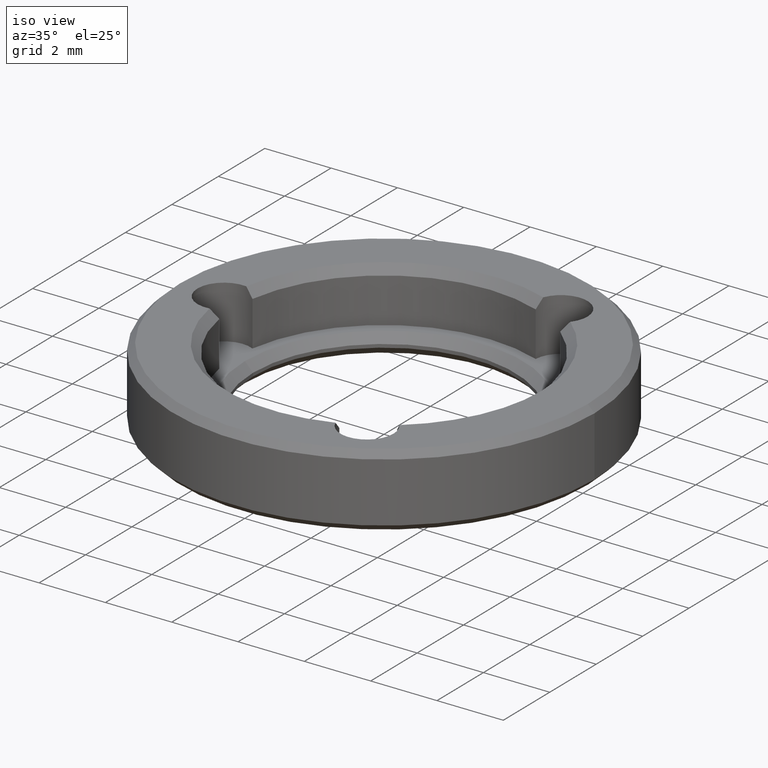
[diagram: clean part render]
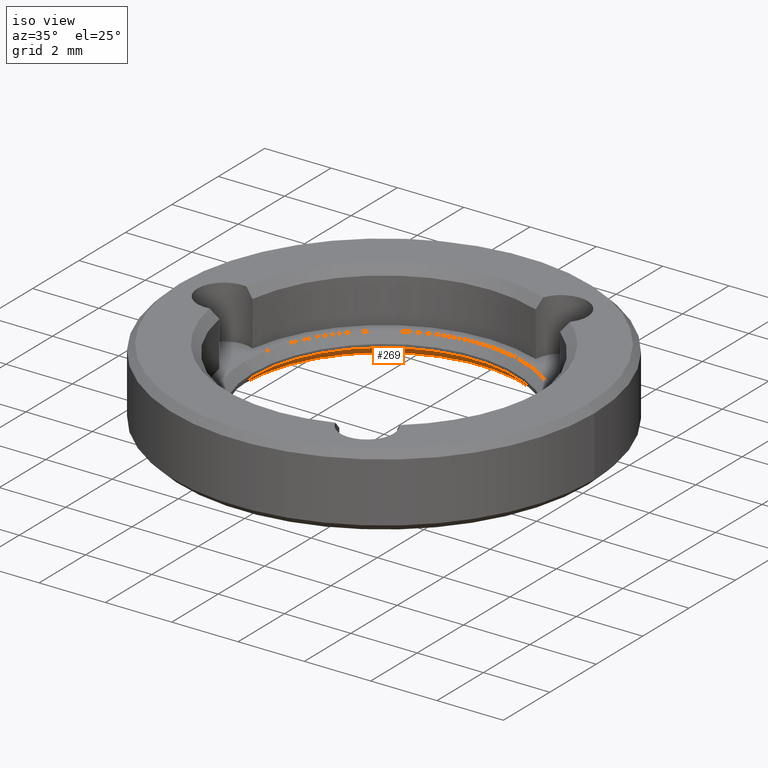
[diagram: same view with one face highlighted and labeled with its STEP entity id]
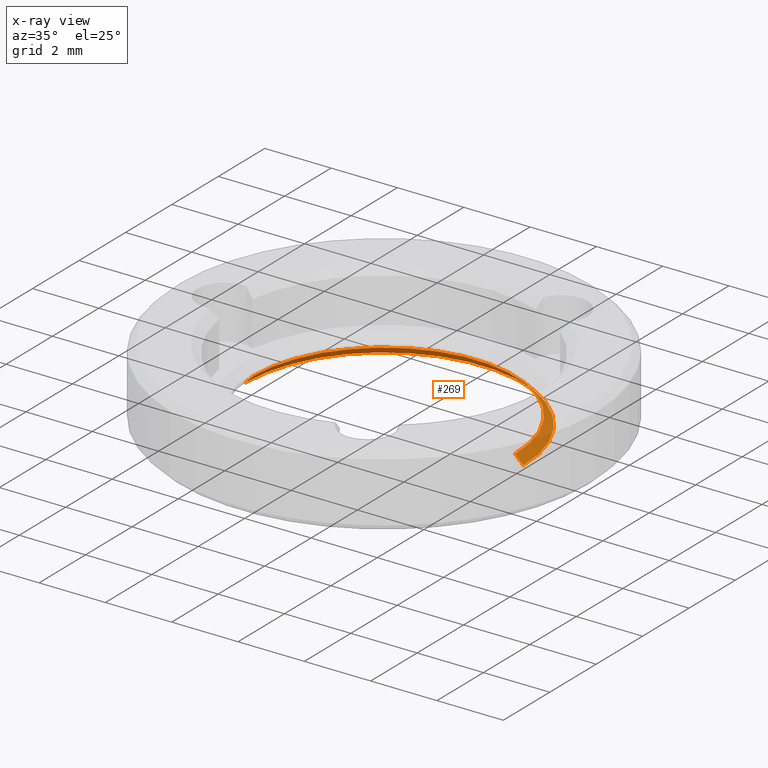
[diagram: x-ray of the same camera — body ghosted, the highlighted face saturated]
A machine part, iso view. The second image highlights one B-rep face of the part: STEP entity #269.
The next image is the same camera in x-ray: the body ghosted, the highlighted face saturated — about 43% of this face is hidden behind the body in this view.
In plain terms, the highlighted conical surface has half-angle 45 deg.
Its self-contained STEP definition (entity closure, byte-faithful):
#39 = VERTEX_POINT ( 'NONE', #126 ) ;
#46 = CIRCLE ( 'NONE', #185, 4.199999999999999289 ) ;
#54 = EDGE_CURVE ( 'NONE', #727, #39, #818, .T. ) ;
#63 = VECTOR ( 'NONE', #553, 1000.000000000000114 ) ;
#98 = LINE ( 'NONE', #593, #652 ) ;
#109 = EDGE_LOOP ( 'NONE', ( #161, #245, #524, #506 ) ) ;
#119 = AXIS2_PLACEMENT_3D ( 'NONE', #295, #501, #655 ) ;
#126 = CARTESIAN_POINT ( 'NONE',  ( 3.950000000000000178, 0.000000000000000000, 0.2499999999999985012 ) ) ;
#134 = DIRECTION ( 'NONE',  ( -0.000000000000000000, -0.000000000000000000, -1.000000000000000000 ) ) ;
#160 = FACE_OUTER_BOUND ( 'NONE', #109, .T. ) ;
#161 = ORIENTED_EDGE ( 'NONE', *, *, #834, .F. ) ;
#163 = DIRECTION ( 'NONE',  ( 0.000000000000000000, 0.000000000000000000, 1.000000000000000000 ) ) ;
#166 = CONICAL_SURFACE ( 'NONE', #119, 4.199999999999999289, 0.7853981633974482790 ) ;
#172 = DIRECTION ( 'NONE',  ( 0.7071067811865474617, 8.659560562354932858E-17, -0.7071067811865474617 ) ) ;
#185 = AXIS2_PLACEMENT_3D ( 'NONE', #647, #163, #362 ) ;
#245 = ORIENTED_EDGE ( 'NONE', *, *, #54, .F. ) ;
#269 = ADVANCED_FACE ( 'NONE', ( #160 ), #166, .F. ) ;
#295 = CARTESIAN_POINT ( 'NONE',  ( 0.000000000000000000, 0.000000000000000000, 0.000000000000000000 ) ) ;
#362 = DIRECTION ( 'NONE',  ( 1.000000000000000000, 0.000000000000000000, 0.000000000000000000 ) ) ;
#405 = LINE ( 'NONE', #690, #63 ) ;
#421 = VERTEX_POINT ( 'NONE', #444 ) ;
#444 = CARTESIAN_POINT ( 'NONE',  ( -4.199999999999999289, 0.000000000000000000, 0.000000000000000000 ) ) ;
#482 = CARTESIAN_POINT ( 'NONE',  ( 4.199999999999999289, 5.143516556418881942E-16, 0.000000000000000000 ) ) ;
#488 = CARTESIAN_POINT ( 'NONE',  ( 0.000000000000000000, 0.000000000000000000, 0.2499999999999985012 ) ) ;
#501 = DIRECTION ( 'NONE',  ( -0.000000000000000000, -0.000000000000000000, -1.000000000000000000 ) ) ;
#506 = ORIENTED_EDGE ( 'NONE', *, *, #777, .F. ) ;
#524 = ORIENTED_EDGE ( 'NONE', *, *, #550, .T. ) ;
#536 = VERTEX_POINT ( 'NONE', #482 ) ;
#550 = EDGE_CURVE ( 'NONE', #727, #421, #405, .T. ) ;
#553 = DIRECTION ( 'NONE',  ( -0.7071067811865474617, 0.000000000000000000, -0.7071067811865474617 ) ) ;
#593 = CARTESIAN_POINT ( 'NONE',  ( 4.199999999999999289, 5.143516556418881942E-16, 0.000000000000000000 ) ) ;
#647 = CARTESIAN_POINT ( 'NONE',  ( 0.000000000000000000, 0.000000000000000000, 0.000000000000000000 ) ) ;
#652 = VECTOR ( 'NONE', #172, 1000.000000000000114 ) ;
#655 = DIRECTION ( 'NONE',  ( -1.000000000000000000, 0.000000000000000000, 0.000000000000000000 ) ) ;
#690 = CARTESIAN_POINT ( 'NONE',  ( -4.199999999999999289, 0.000000000000000000, 0.000000000000000000 ) ) ;
#704 = CARTESIAN_POINT ( 'NONE',  ( -3.950000000000000178, 4.837354856632045057E-16, 0.2499999999999985012 ) ) ;
#727 = VERTEX_POINT ( 'NONE', #704 ) ;
#777 = EDGE_CURVE ( 'NONE', #536, #421, #46, .T. ) ;
#818 = CIRCLE ( 'NONE', #831, 3.950000000000000178 ) ;
#831 = AXIS2_PLACEMENT_3D ( 'NONE', #488, #134, #833 ) ;
#833 = DIRECTION ( 'NONE',  ( 1.000000000000000000, 0.000000000000000000, 0.000000000000000000 ) ) ;
#834 = EDGE_CURVE ( 'NONE', #39, #536, #98, .T. ) ;